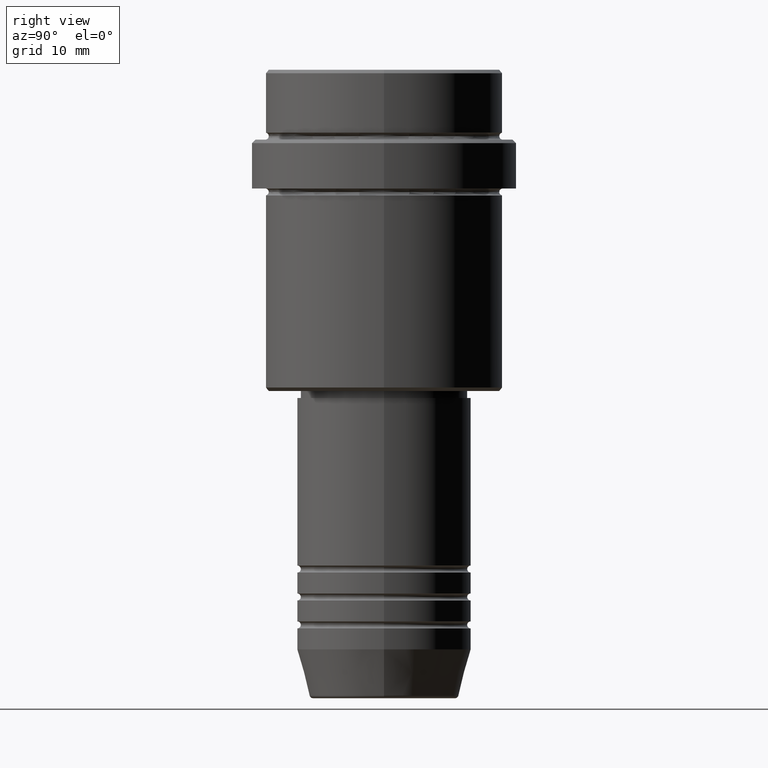
[diagram: clean part render]
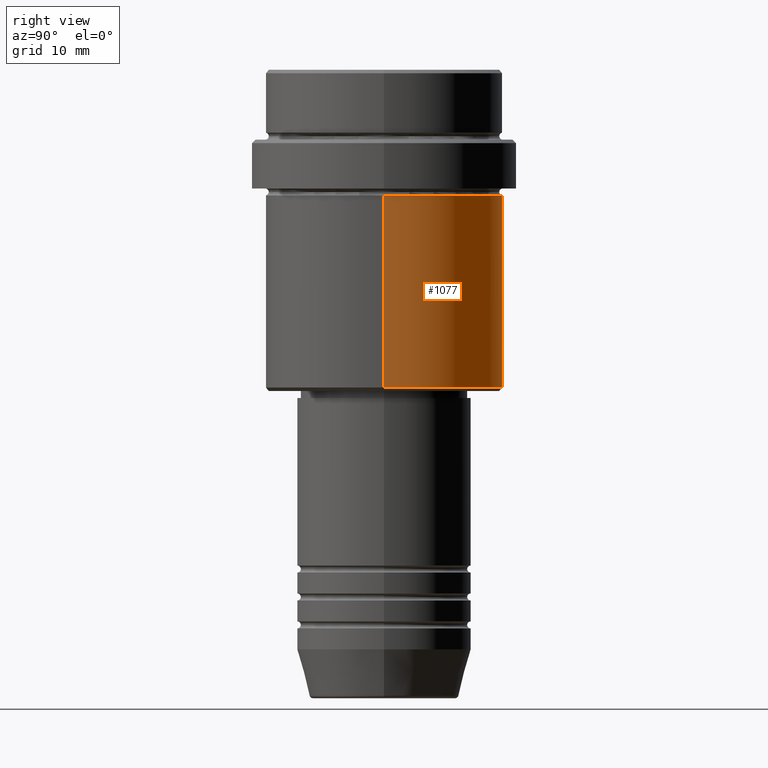
[diagram: same view with one face highlighted and labeled with its STEP entity id]
A machine part, right view. The second image highlights one B-rep face of the part: STEP entity #1077.
In plain terms, the highlighted cylindrical surface (partial cylindrical patch) has radius 17 mm, axis along (-0, -0, 1).
Its self-contained STEP definition (entity closure, byte-faithful):
#24 = EDGE_CURVE ( 'NONE', #987, #468, #730, .T. ) ;
#30 = EDGE_CURVE ( 'NONE', #694, #468, #728, .T. ) ;
#114 = ORIENTED_EDGE ( 'NONE', *, *, #30, .F. ) ;
#121 = ORIENTED_EDGE ( 'NONE', *, *, #281, .T. ) ;
#148 = DIRECTION ( 'NONE',  ( -0.000000000000000000, -0.000000000000000000, 1.000000000000000000 ) ) ;
#191 = CARTESIAN_POINT ( 'NONE',  ( -17.00000000000000000, 2.081899558550500280E-15, 0.000000000000000000 ) ) ;
#244 = DIRECTION ( 'NONE',  ( -0.000000000000000000, -0.000000000000000000, 1.000000000000000000 ) ) ;
#281 = EDGE_CURVE ( 'NONE', #1024, #987, #1346, .T. ) ;
#285 = DIRECTION ( 'NONE',  ( 1.000000000000000000, 0.000000000000000000, 0.000000000000000000 ) ) ;
#291 = DIRECTION ( 'NONE',  ( -0.000000000000000000, -0.000000000000000000, 1.000000000000000000 ) ) ;
#379 = EDGE_CURVE ( 'NONE', #1024, #694, #1128, .T. ) ;
#401 = ORIENTED_EDGE ( 'NONE', *, *, #379, .F. ) ;
#436 = AXIS2_PLACEMENT_3D ( 'NONE', #1113, #244, #578 ) ;
#468 = VERTEX_POINT ( 'NONE', #819 ) ;
#578 = DIRECTION ( 'NONE',  ( -1.000000000000000000, 0.000000000000000000, 0.000000000000000000 ) ) ;
#644 = AXIS2_PLACEMENT_3D ( 'NONE', #790, #148, #1354 ) ;
#648 = ORIENTED_EDGE ( 'NONE', *, *, #24, .T. ) ;
#654 = CARTESIAN_POINT ( 'NONE',  ( 17.00000000000000000, 0.000000000000000000, -18.00000000000000355 ) ) ;
#680 = VECTOR ( 'NONE', #1353, 1000.000000000000000 ) ;
#694 = VERTEX_POINT ( 'NONE', #654 ) ;
#728 = CIRCLE ( 'NONE', #886, 17.00000000000000000 ) ;
#730 = LINE ( 'NONE', #191, #771 ) ;
#771 = VECTOR ( 'NONE', #291, 1000.000000000000000 ) ;
#790 = CARTESIAN_POINT ( 'NONE',  ( 0.000000000000000000, 0.000000000000000000, 0.000000000000000000 ) ) ;
#812 = FACE_OUTER_BOUND ( 'NONE', #823, .T. ) ;
#819 = CARTESIAN_POINT ( 'NONE',  ( -17.00000000000000000, 2.081899558550500280E-15, -18.00000000000000355 ) ) ;
#823 = EDGE_LOOP ( 'NONE', ( #121, #648, #114, #401 ) ) ;
#886 = AXIS2_PLACEMENT_3D ( 'NONE', #935, #952, #285 ) ;
#903 = CARTESIAN_POINT ( 'NONE',  ( 17.00000000000000000, 0.000000000000000000, 0.000000000000000000 ) ) ;
#911 = CARTESIAN_POINT ( 'NONE',  ( 17.00000000000000000, 0.000000000000000000, -45.49999999999997158 ) ) ;
#935 = CARTESIAN_POINT ( 'NONE',  ( 0.000000000000000000, 0.000000000000000000, -18.00000000000000355 ) ) ;
#952 = DIRECTION ( 'NONE',  ( -0.000000000000000000, -0.000000000000000000, 1.000000000000000000 ) ) ;
#987 = VERTEX_POINT ( 'NONE', #1148 ) ;
#1024 = VERTEX_POINT ( 'NONE', #911 ) ;
#1077 = ADVANCED_FACE ( 'NONE', ( #812 ), #1229, .T. ) ;
#1113 = CARTESIAN_POINT ( 'NONE',  ( 0.000000000000000000, 0.000000000000000000, -45.49999999999997158 ) ) ;
#1128 = LINE ( 'NONE', #903, #680 ) ;
#1148 = CARTESIAN_POINT ( 'NONE',  ( -17.00000000000000000, 2.081899558550500280E-15, -45.49999999999997158 ) ) ;
#1229 = CYLINDRICAL_SURFACE ( 'NONE', #644, 17.00000000000000000 ) ;
#1346 = CIRCLE ( 'NONE', #436, 17.00000000000000000 ) ;
#1353 = DIRECTION ( 'NONE',  ( -0.000000000000000000, -0.000000000000000000, 1.000000000000000000 ) ) ;
#1354 = DIRECTION ( 'NONE',  ( 1.000000000000000000, 0.000000000000000000, 0.000000000000000000 ) ) ;